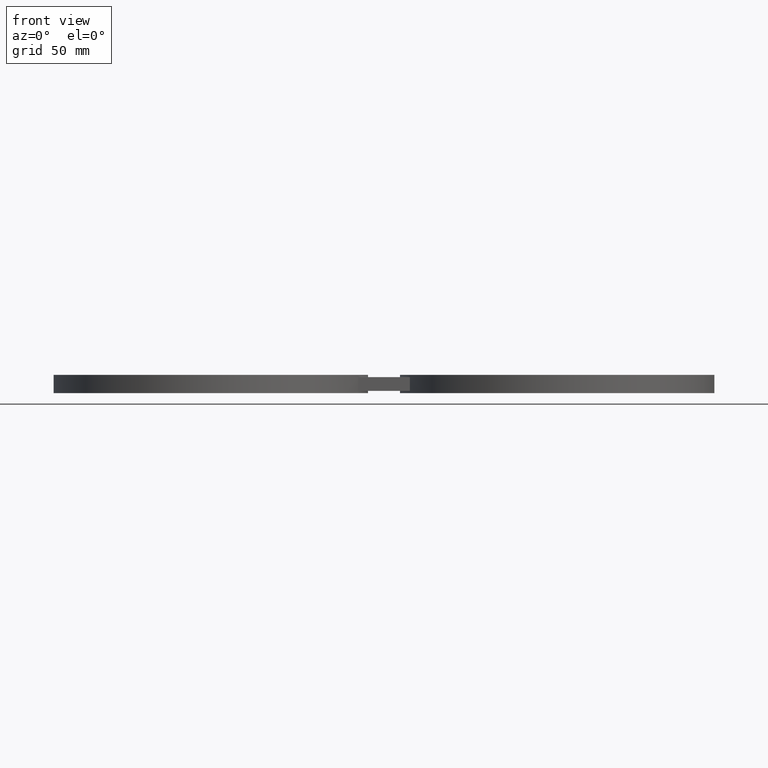
[diagram: clean part render]
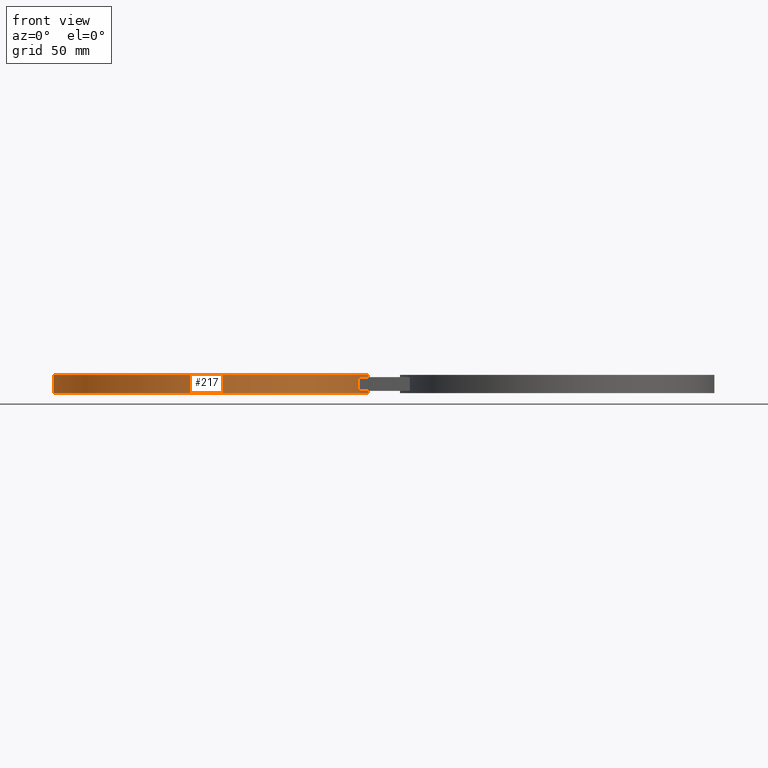
[diagram: same view with one face highlighted and labeled with its STEP entity id]
A machine part, front view. The second image highlights one B-rep face of the part: STEP entity #217.
In plain terms, the highlighted cylindrical surface (partial cylindrical patch) has radius 109.474 mm, axis along (0, 0, 1).
Its self-contained STEP definition (entity closure, byte-faithful):
#91=AXIS2_PLACEMENT_3D('Circle Axis2P3D',#89,#90,$) ;
#123=AXIS2_PLACEMENT_3D('Cylinder Axis2P3D',#120,#121,#122) ;
#185=AXIS2_PLACEMENT_3D('Circle Axis2P3D',#183,#184,$) ;
#190=AXIS2_PLACEMENT_3D('Circle Axis2P3D',#188,#189,$) ;
#204=AXIS2_PLACEMENT_3D('Circle Axis2P3D',#202,#203,$) ;
#84=CARTESIAN_POINT('Vertex',(4.31000000002,0.,0.250000000001)) ;
#86=CARTESIAN_POINT('Vertex',(-4.31000000002,5.27822770435E-016,0.250000000001)) ;
#89=CARTESIAN_POINT('Axis2P3D Location',(0.,0.,0.250000000001)) ;
#120=CARTESIAN_POINT('Axis2P3D Location',(0.,0.,0.)) ;
#125=CARTESIAN_POINT('Line Origine',(4.31000000002,0.,0.)) ;
#129=CARTESIAN_POINT('Vertex',(4.31000000002,0.,-0.250000000001)) ;
#131=CARTESIAN_POINT('Vertex',(4.31000000002,0.,-0.187500000001)) ;
#138=CARTESIAN_POINT('Vertex',(-4.31000000002,5.27822770435E-016,-0.250000000001)) ;
#141=CARTESIAN_POINT('Line Origine',(-4.31000000002,5.27822770435E-016,0.)) ;
#146=CARTESIAN_POINT('Line Origine',(4.31000000002,0.,0.)) ;
#150=CARTESIAN_POINT('Vertex',(4.31000000002,0.,0.187500000001)) ;
#183=CARTESIAN_POINT('Axis2P3D Location',(0.,0.,-0.250000000001)) ;
#188=CARTESIAN_POINT('Axis2P3D Location',(0.,0.,-0.187500000001)) ;
#192=CARTESIAN_POINT('Vertex',(4.04055689233,-1.50000000001,-0.187500000001)) ;
#195=CARTESIAN_POINT('Line Origine',(4.04055689233,-1.50000000001,0.)) ;
#199=CARTESIAN_POINT('Vertex',(4.04055689233,-1.50000000001,0.187500000001)) ;
#202=CARTESIAN_POINT('Axis2P3D Location',(0.,0.,0.187500000001)) ;
#90=DIRECTION('Axis2P3D Direction',(0.,0.,0.0393700787402)) ;
#121=DIRECTION('Axis2P3D Direction',(0.,0.,0.0393700787402)) ;
#122=DIRECTION('Axis2P3D XDirection',(-0.0393700787402,4.82144409113E-018,0.)) ;
#126=DIRECTION('Vector Direction',(0.,0.,0.0393700787402)) ;
#142=DIRECTION('Vector Direction',(0.,0.,0.0393700787402)) ;
#147=DIRECTION('Vector Direction',(0.,0.,0.0393700787402)) ;
#184=DIRECTION('Axis2P3D Direction',(0.,0.,0.0393700787402)) ;
#189=DIRECTION('Axis2P3D Direction',(0.,0.,0.0393700787402)) ;
#196=DIRECTION('Vector Direction',(0.,0.,0.0393700787402)) ;
#203=DIRECTION('Axis2P3D Direction',(0.,0.,0.0393700787402)) ;
#127=VECTOR('Line Direction',#126,0.0393700787402) ;
#143=VECTOR('Line Direction',#142,0.0393700787402) ;
#148=VECTOR('Line Direction',#147,0.0393700787402) ;
#197=VECTOR('Line Direction',#196,0.0393700787402) ;
#208=ORIENTED_EDGE('',*,*,#152,.T.) ;
#209=ORIENTED_EDGE('',*,*,#93,.F.) ;
#210=ORIENTED_EDGE('',*,*,#145,.F.) ;
#211=ORIENTED_EDGE('',*,*,#187,.T.) ;
#212=ORIENTED_EDGE('',*,*,#133,.T.) ;
#213=ORIENTED_EDGE('',*,*,#194,.F.) ;
#214=ORIENTED_EDGE('',*,*,#201,.T.) ;
#215=ORIENTED_EDGE('',*,*,#206,.T.) ;
#217=ADVANCED_FACE('PartBody',(#216),#124,.T.) ;
#92=CIRCLE('generated circle',#91,4.31000000002) ;
#186=CIRCLE('generated circle',#185,4.31000000002) ;
#191=CIRCLE('generated circle',#190,4.31000000002) ;
#205=CIRCLE('generated circle',#204,4.31000000002) ;
#124=CYLINDRICAL_SURFACE('generated cylinder',#123,4.31000000002) ;
#93=EDGE_CURVE('',#87,#85,#92,.T.) ;
#133=EDGE_CURVE('',#130,#132,#128,.T.) ;
#145=EDGE_CURVE('',#139,#87,#144,.T.) ;
#152=EDGE_CURVE('',#151,#85,#149,.T.) ;
#187=EDGE_CURVE('',#139,#130,#186,.T.) ;
#194=EDGE_CURVE('',#193,#132,#191,.T.) ;
#201=EDGE_CURVE('',#193,#200,#198,.T.) ;
#206=EDGE_CURVE('',#200,#151,#205,.T.) ;
#207=EDGE_LOOP('',(#208,#209,#210,#211,#212,#213,#214,#215)) ;
#216=FACE_OUTER_BOUND('',#207,.T.) ;
#128=LINE('Line',#125,#127) ;
#144=LINE('Line',#141,#143) ;
#149=LINE('Line',#146,#148) ;
#198=LINE('Line',#195,#197) ;
#85=VERTEX_POINT('',#84) ;
#87=VERTEX_POINT('',#86) ;
#130=VERTEX_POINT('',#129) ;
#132=VERTEX_POINT('',#131) ;
#139=VERTEX_POINT('',#138) ;
#151=VERTEX_POINT('',#150) ;
#193=VERTEX_POINT('',#192) ;
#200=VERTEX_POINT('',#199) ;